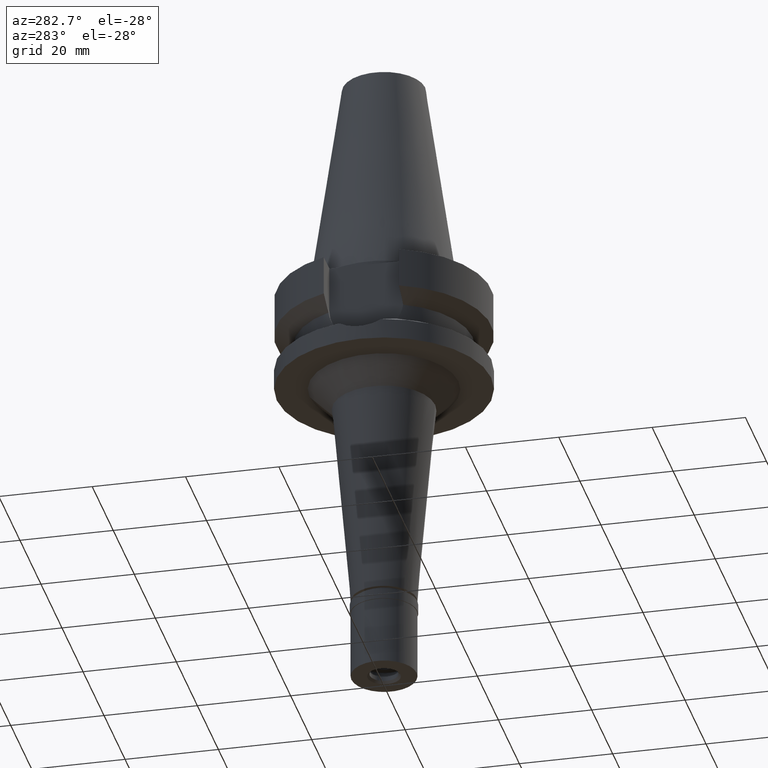
[diagram: clean part render]
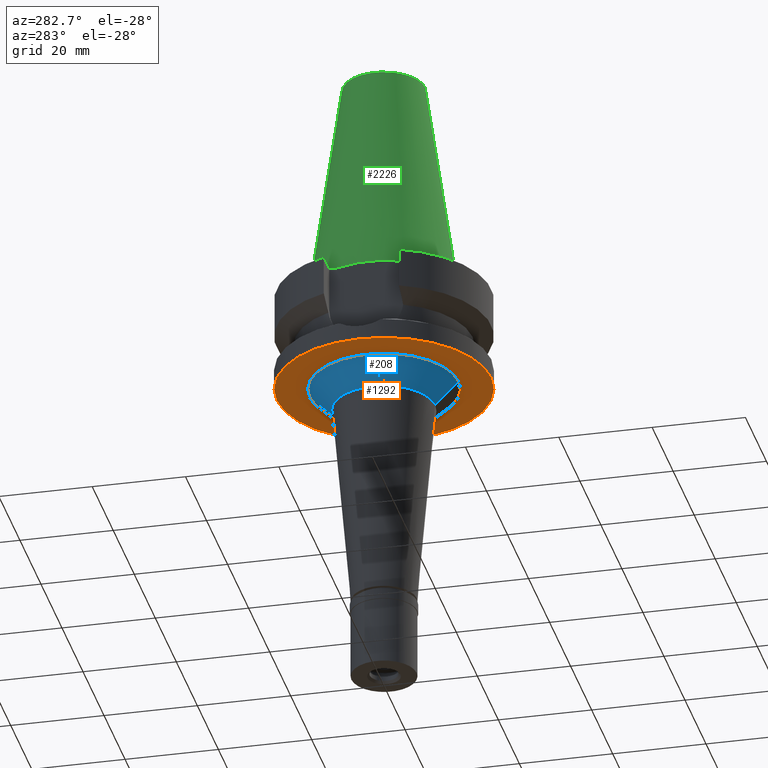
[diagram: same view with three faces highlighted in distinct colors, each labeled with its STEP entity id]
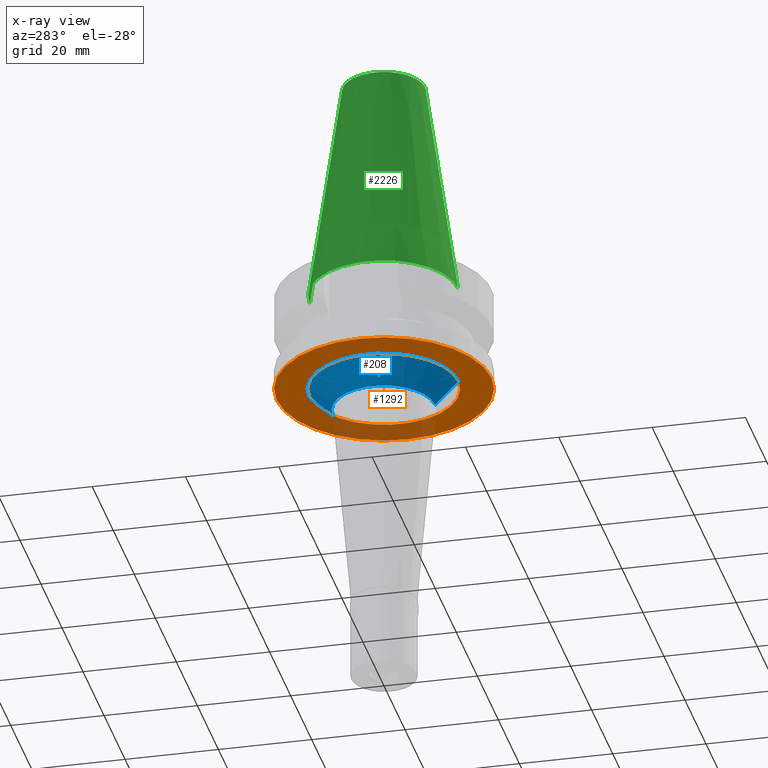
[diagram: x-ray of the same camera — body ghosted, the three highlighted faces saturated]
A machine part, auxiliary view with three faces highlighted in distinct colors.
The next image is the same camera in x-ray (body ghosted, the three faces saturated) — at least one of them is partly hidden behind the body in this view.
Their STEP definitions:

[orange] entity #1292 — the highlighted planar face has unit normal (0, 0, -1).
#145 = CARTESIAN_POINT ( 'NONE',  ( 0.0000000000000000000, 15.96323645772000255, -22.00000000000000000 ) ) ;
#154 = DIRECTION ( 'NONE',  ( 0.0000000000000000000, 0.0000000000000000000, 1.000000000000000000 ) ) ;
#253 = EDGE_CURVE ( 'NONE', #1749, #2262, #1615, .T. ) ;
#269 = FACE_OUTER_BOUND ( 'NONE', #743, .T. ) ;
#346 = AXIS2_PLACEMENT_3D ( 'NONE', #1591, #1488, #816 ) ;
#366 = CARTESIAN_POINT ( 'NONE',  ( 0.0000000000000000000, 23.00000000000000000, -22.00000000000000000 ) ) ;
#389 = EDGE_CURVE ( 'NONE', #2262, #1749, #1151, .T. ) ;
#461 = DIRECTION ( 'NONE',  ( 0.0000000000000000000, -1.000000000000000000, 0.0000000000000000000 ) ) ;
#558 = CARTESIAN_POINT ( 'NONE',  ( 0.0000000000000000000, 0.0000000000000000000, -22.00000000000000000 ) ) ;
#595 = CIRCLE ( 'NONE', #2587, 23.00000000000000000 ) ;
#743 = EDGE_LOOP ( 'NONE', ( #800, #2678 ) ) ;
#757 = DIRECTION ( 'NONE',  ( 0.0000000000000000000, 1.000000000000000000, 0.0000000000000000000 ) ) ;
#800 = ORIENTED_EDGE ( 'NONE', *, *, #2832, .F. ) ;
#816 = DIRECTION ( 'NONE',  ( 0.0000000000000000000, -1.000000000000000000, 0.0000000000000000000 ) ) ;
#820 = CIRCLE ( 'NONE', #2907, 23.00000000000000000 ) ;
#827 = CARTESIAN_POINT ( 'NONE',  ( 0.0000000000000000000, -15.96323645772000255, -22.00000000000000000 ) ) ;
#952 = ORIENTED_EDGE ( 'NONE', *, *, #253, .F. ) ;
#961 = AXIS2_PLACEMENT_3D ( 'NONE', #2478, #2693, #461 ) ;
#1010 = DIRECTION ( 'NONE',  ( 0.0000000000000000000, 0.0000000000000000000, -1.000000000000000000 ) ) ;
#1151 = CIRCLE ( 'NONE', #1955, 15.96323645772000255 ) ;
#1236 = VERTEX_POINT ( 'NONE', #366 ) ;
#1292 = ADVANCED_FACE ( 'NONE', ( #269, #2003 ), #1788, .T. ) ;
#1310 = DIRECTION ( 'NONE',  ( 0.0000000000000000000, 0.0000000000000000000, 1.000000000000000000 ) ) ;
#1418 = EDGE_LOOP ( 'NONE', ( #2222, #952 ) ) ;
#1488 = DIRECTION ( 'NONE',  ( 0.0000000000000000000, 0.0000000000000000000, -1.000000000000000000 ) ) ;
#1591 = CARTESIAN_POINT ( 'NONE',  ( 0.0000000000000000000, 0.0000000000000000000, -22.00000000000000000 ) ) ;
#1615 = CIRCLE ( 'NONE', #346, 15.96323645772000255 ) ;
#1743 = CARTESIAN_POINT ( 'NONE',  ( 0.0000000000000000000, -23.00000000000000000, -22.00000000000000000 ) ) ;
#1749 = VERTEX_POINT ( 'NONE', #827 ) ;
#1788 = PLANE ( 'NONE',  #961 ) ;
#1842 = EDGE_CURVE ( 'NONE', #2747, #1236, #820, .T. ) ;
#1955 = AXIS2_PLACEMENT_3D ( 'NONE', #558, #1010, #757 ) ;
#2003 = FACE_BOUND ( 'NONE', #1418, .T. ) ;
#2215 = CARTESIAN_POINT ( 'NONE',  ( 0.0000000000000000000, 1.899672114836999856E-14, -22.00000000000000000 ) ) ;
#2222 = ORIENTED_EDGE ( 'NONE', *, *, #389, .F. ) ;
#2262 = VERTEX_POINT ( 'NONE', #145 ) ;
#2426 = CARTESIAN_POINT ( 'NONE',  ( 0.0000000000000000000, 1.899672114836999856E-14, -22.00000000000000000 ) ) ;
#2478 = CARTESIAN_POINT ( 'NONE',  ( 0.0000000000000000000, 0.0000000000000000000, -22.00000000000000000 ) ) ;
#2587 = AXIS2_PLACEMENT_3D ( 'NONE', #2426, #1310, #2653 ) ;
#2653 = DIRECTION ( 'NONE',  ( 0.0000000000000000000, 1.000000000000000000, 0.0000000000000000000 ) ) ;
#2678 = ORIENTED_EDGE ( 'NONE', *, *, #1842, .F. ) ;
#2693 = DIRECTION ( 'NONE',  ( 0.0000000000000000000, 0.0000000000000000000, -1.000000000000000000 ) ) ;
#2747 = VERTEX_POINT ( 'NONE', #1743 ) ;
#2831 = DIRECTION ( 'NONE',  ( 0.0000000000000000000, -1.000000000000000000, 0.0000000000000000000 ) ) ;
#2832 = EDGE_CURVE ( 'NONE', #1236, #2747, #595, .T. ) ;
#2907 = AXIS2_PLACEMENT_3D ( 'NONE', #2215, #154, #2831 ) ;

[blue] entity #208 — the highlighted conical surface has half-angle 45 deg.
#66 = CIRCLE ( 'NONE', #919, 10.96323645772000077 ) ;
#145 = CARTESIAN_POINT ( 'NONE',  ( 0.0000000000000000000, 15.96323645772000255, -22.00000000000000000 ) ) ;
#182 = DIRECTION ( 'NONE',  ( 0.0000000000000000000, 1.000000000000000000, 0.0000000000000000000 ) ) ;
#200 = LINE ( 'NONE', #1750, #2242 ) ;
#208 = ADVANCED_FACE ( 'NONE', ( #412 ), #2434, .T. ) ;
#253 = EDGE_CURVE ( 'NONE', #1749, #2262, #1615, .T. ) ;
#346 = AXIS2_PLACEMENT_3D ( 'NONE', #1591, #1488, #816 ) ;
#412 = FACE_OUTER_BOUND ( 'NONE', #905, .T. ) ;
#414 = DIRECTION ( 'NONE',  ( 0.0000000000000000000, 0.7071067811863974706, -0.7071067811866975639 ) ) ;
#648 = EDGE_CURVE ( 'NONE', #2262, #655, #200, .T. ) ;
#655 = VERTEX_POINT ( 'NONE', #893 ) ;
#816 = DIRECTION ( 'NONE',  ( 0.0000000000000000000, -1.000000000000000000, 0.0000000000000000000 ) ) ;
#827 = CARTESIAN_POINT ( 'NONE',  ( 0.0000000000000000000, -15.96323645772000255, -22.00000000000000000 ) ) ;
#893 = CARTESIAN_POINT ( 'NONE',  ( 0.0000000000000000000, 10.96323645772000077, -27.00000000000000000 ) ) ;
#905 = EDGE_LOOP ( 'NONE', ( #1461, #2140, #1603, #2460 ) ) ;
#919 = AXIS2_PLACEMENT_3D ( 'NONE', #1234, #2612, #2092 ) ;
#971 = LINE ( 'NONE', #2453, #1629 ) ;
#987 = CARTESIAN_POINT ( 'NONE',  ( 0.0000000000000000000, -10.96323645772000077, -27.00000000000000000 ) ) ;
#1234 = CARTESIAN_POINT ( 'NONE',  ( 0.0000000000000000000, 0.0000000000000000000, -27.00000000000000000 ) ) ;
#1317 = CARTESIAN_POINT ( 'NONE',  ( 0.0000000000000000000, 0.0000000000000000000, -24.50000000000000000 ) ) ;
#1461 = ORIENTED_EDGE ( 'NONE', *, *, #2636, .F. ) ;
#1488 = DIRECTION ( 'NONE',  ( 0.0000000000000000000, 0.0000000000000000000, -1.000000000000000000 ) ) ;
#1591 = CARTESIAN_POINT ( 'NONE',  ( 0.0000000000000000000, 0.0000000000000000000, -22.00000000000000000 ) ) ;
#1603 = ORIENTED_EDGE ( 'NONE', *, *, #253, .T. ) ;
#1615 = CIRCLE ( 'NONE', #346, 15.96323645772000255 ) ;
#1629 = VECTOR ( 'NONE', #414, 1000.000000000000114 ) ;
#1749 = VERTEX_POINT ( 'NONE', #827 ) ;
#1750 = CARTESIAN_POINT ( 'NONE',  ( 0.0000000000000000000, 15.96323645772000255, -22.00000000000000000 ) ) ;
#2006 = EDGE_CURVE ( 'NONE', #1749, #2069, #971, .T. ) ;
#2069 = VERTEX_POINT ( 'NONE', #987 ) ;
#2092 = DIRECTION ( 'NONE',  ( 0.0000000000000000000, -1.000000000000000000, 0.0000000000000000000 ) ) ;
#2140 = ORIENTED_EDGE ( 'NONE', *, *, #2006, .F. ) ;
#2224 = DIRECTION ( 'NONE',  ( 0.0000000000000000000, 0.0000000000000000000, 1.000000000000000000 ) ) ;
#2242 = VECTOR ( 'NONE', #2268, 1000.000000000000114 ) ;
#2262 = VERTEX_POINT ( 'NONE', #145 ) ;
#2268 = DIRECTION ( 'NONE',  ( 0.0000000000000000000, -0.7071067811863974706, -0.7071067811866975639 ) ) ;
#2434 = CONICAL_SURFACE ( 'NONE', #2661, 13.46323645772000077, 0.7853981633972997312 ) ;
#2453 = CARTESIAN_POINT ( 'NONE',  ( 0.0000000000000000000, -15.96323645772000255, -22.00000000000000000 ) ) ;
#2460 = ORIENTED_EDGE ( 'NONE', *, *, #648, .T. ) ;
#2612 = DIRECTION ( 'NONE',  ( 0.0000000000000000000, 0.0000000000000000000, -1.000000000000000000 ) ) ;
#2636 = EDGE_CURVE ( 'NONE', #2069, #655, #66, .T. ) ;
#2661 = AXIS2_PLACEMENT_3D ( 'NONE', #1317, #2224, #182 ) ;

[green] entity #2226 — the highlighted conical surface has half-angle 8.297 deg.
#23 = DIRECTION ( 'NONE',  ( 0.0000000000000000000, -0.1443043893539925626, -0.9895333461855498891 ) ) ;
#87 = CARTESIAN_POINT ( 'NONE',  ( 0.0000000000000000000, 1.521011324540999938E-14, 24.19999999999999929 ) ) ;
#143 = CARTESIAN_POINT ( 'NONE',  ( 0.0000000000000000000, 8.816791732783000768, 48.39999999999999858 ) ) ;
#207 = CIRCLE ( 'NONE', #2244, 15.87500000000000000 ) ;
#248 = ORIENTED_EDGE ( 'NONE', *, *, #1082, .T. ) ;
#336 = LINE ( 'NONE', #143, #1013 ) ;
#446 = AXIS2_PLACEMENT_3D ( 'NONE', #1174, #943, #1682 ) ;
#468 = CARTESIAN_POINT ( 'NONE',  ( 0.0000000000000000000, -8.816791732783000768, 48.39999999999999858 ) ) ;
#513 = EDGE_CURVE ( 'NONE', #1217, #2659, #1458, .T. ) ;
#652 = DIRECTION ( 'NONE',  ( 0.0000000000000000000, -1.000000000000000000, 0.0000000000000000000 ) ) ;
#943 = DIRECTION ( 'NONE',  ( 0.0000000000000000000, 0.0000000000000000000, -1.000000000000000000 ) ) ;
#998 = DIRECTION ( 'NONE',  ( 0.0000000000000000000, 0.0000000000000000000, -1.000000000000000000 ) ) ;
#1013 = VECTOR ( 'NONE', #1056, 1000.000000000000114 ) ;
#1056 = DIRECTION ( 'NONE',  ( 0.0000000000000000000, 0.1443043893539925626, -0.9895333461855498891 ) ) ;
#1082 = EDGE_CURVE ( 'NONE', #1136, #1935, #336, .T. ) ;
#1136 = VERTEX_POINT ( 'NONE', #2733 ) ;
#1146 = CARTESIAN_POINT ( 'NONE',  ( 0.0000000000000000000, 15.87500000000000000, -1.598721155459999993E-13 ) ) ;
#1174 = CARTESIAN_POINT ( 'NONE',  ( 0.0000000000000000000, 1.521011324540999938E-14, 48.39999999999999858 ) ) ;
#1217 = VERTEX_POINT ( 'NONE', #468 ) ;
#1282 = EDGE_CURVE ( 'NONE', #2659, #1935, #207, .T. ) ;
#1346 = EDGE_LOOP ( 'NONE', ( #1862, #1388, #1428, #248 ) ) ;
#1388 = ORIENTED_EDGE ( 'NONE', *, *, #513, .F. ) ;
#1400 = AXIS2_PLACEMENT_3D ( 'NONE', #87, #998, #2683 ) ;
#1428 = ORIENTED_EDGE ( 'NONE', *, *, #1651, .T. ) ;
#1458 = LINE ( 'NONE', #1870, #1620 ) ;
#1562 = CARTESIAN_POINT ( 'NONE',  ( 0.0000000000000000000, 1.521011324540999938E-14, -3.694822225953000089E-13 ) ) ;
#1620 = VECTOR ( 'NONE', #23, 1000.000000000000114 ) ;
#1651 = EDGE_CURVE ( 'NONE', #1217, #1136, #2441, .T. ) ;
#1682 = DIRECTION ( 'NONE',  ( 0.0000000000000000000, -1.000000000000000000, 0.0000000000000000000 ) ) ;
#1862 = ORIENTED_EDGE ( 'NONE', *, *, #1282, .F. ) ;
#1870 = CARTESIAN_POINT ( 'NONE',  ( 0.0000000000000000000, -8.816791732783000768, 48.39999999999999858 ) ) ;
#1911 = FACE_OUTER_BOUND ( 'NONE', #1346, .T. ) ;
#1935 = VERTEX_POINT ( 'NONE', #1146 ) ;
#2226 = ADVANCED_FACE ( 'NONE', ( #1911 ), #2911, .T. ) ;
#2244 = AXIS2_PLACEMENT_3D ( 'NONE', #1562, #2270, #652 ) ;
#2270 = DIRECTION ( 'NONE',  ( 0.0000000000000000000, 0.0000000000000000000, -1.000000000000000000 ) ) ;
#2441 = CIRCLE ( 'NONE', #446, 8.816791732783000768 ) ;
#2599 = CARTESIAN_POINT ( 'NONE',  ( 0.0000000000000000000, -15.87500000000000000, -1.598721155459999993E-13 ) ) ;
#2659 = VERTEX_POINT ( 'NONE', #2599 ) ;
#2683 = DIRECTION ( 'NONE',  ( 0.0000000000000000000, -1.000000000000000000, 0.0000000000000000000 ) ) ;
#2733 = CARTESIAN_POINT ( 'NONE',  ( 0.0000000000000000000, 8.816791732783000768, 48.39999999999999858 ) ) ;
#2911 = CONICAL_SURFACE ( 'NONE', #1400, 12.34589586639000025, 0.1448099680379422438 ) ;